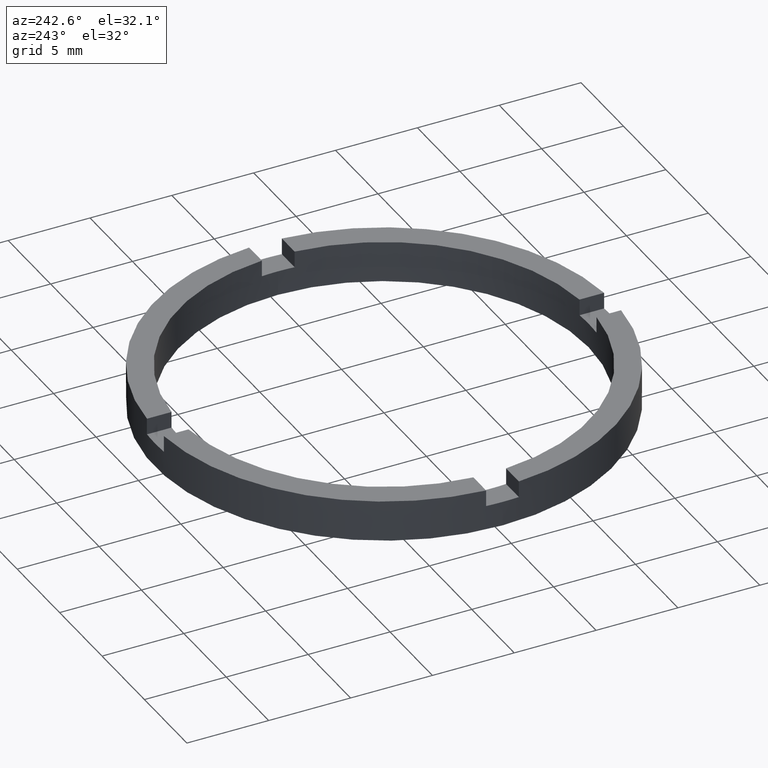
[diagram: clean part render]
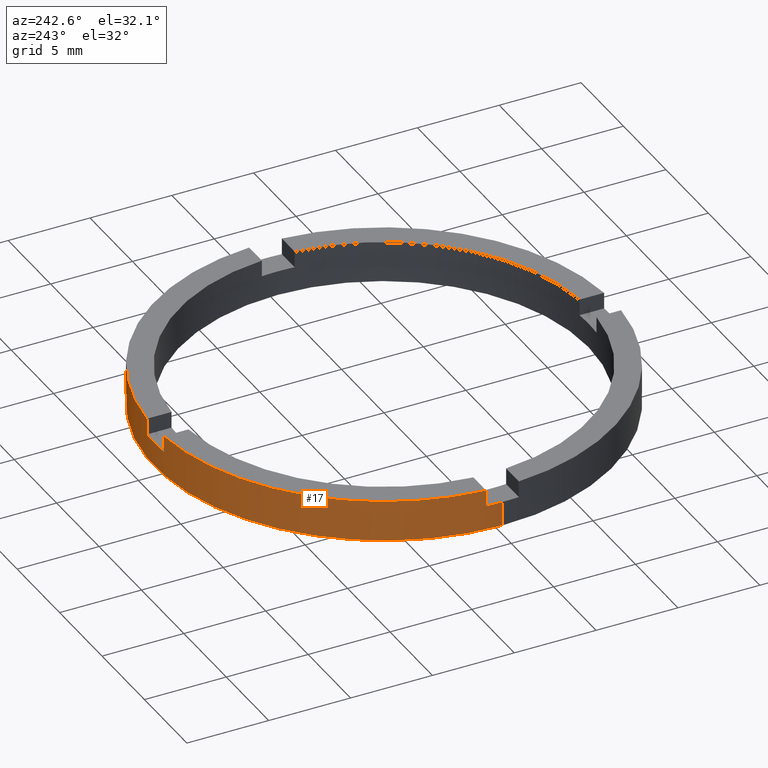
[diagram: same view with one face highlighted and labeled with its STEP entity id]
A machine part, auxiliary view. The second image highlights one B-rep face of the part: STEP entity #17.
In plain terms, the highlighted cylindrical surface (partial cylindrical patch) has radius 14 mm, axis along (-0, -0, -1).
Its self-contained STEP definition (entity closure, byte-faithful):
#4 = CIRCLE ( 'NONE', #313, 14.00000000000000000 ) ;
#8 = CYLINDRICAL_SURFACE ( 'NONE', #193, 14.00000000000000000 ) ;
#9 = CARTESIAN_POINT ( 'NONE',  ( 0.000000000000000000, 0.000000000000000000, 1.500000000000000000 ) ) ;
#10 = VECTOR ( 'NONE', #627, 1000.000000000000000 ) ;
#14 = CARTESIAN_POINT ( 'NONE',  ( 0.000000000000000000, 0.000000000000000000, 2.500000000000000000 ) ) ;
#17 = ADVANCED_FACE ( 'NONE', ( #260 ), #8, .T. ) ;
#18 = DIRECTION ( 'NONE',  ( 1.000000000000000000, 0.000000000000000000, 0.000000000000000000 ) ) ;
#29 = DIRECTION ( 'NONE',  ( -0.000000000000000000, -0.000000000000000000, -1.000000000000000000 ) ) ;
#35 = DIRECTION ( 'NONE',  ( 1.000000000000000000, 0.000000000000000000, 0.000000000000000000 ) ) ;
#46 = DIRECTION ( 'NONE',  ( 0.000000000000000000, 0.000000000000000000, 1.000000000000000000 ) ) ;
#48 = DIRECTION ( 'NONE',  ( 0.000000000000000000, 0.000000000000000000, 1.000000000000000000 ) ) ;
#57 = CARTESIAN_POINT ( 'NONE',  ( 0.000000000000000000, 0.000000000000000000, 0.000000000000000000 ) ) ;
#61 = EDGE_CURVE ( 'NONE', #711, #420, #519, .T. ) ;
#69 = CARTESIAN_POINT ( 'NONE',  ( 13.96424004376895311, 0.9999999999998404610, 2.500000000000000000 ) ) ;
#75 = DIRECTION ( 'NONE',  ( 0.000000000000000000, 0.000000000000000000, 1.000000000000000000 ) ) ;
#79 = EDGE_CURVE ( 'NONE', #131, #448, #4, .T. ) ;
#81 = DIRECTION ( 'NONE',  ( 1.000000000000000000, 0.000000000000000000, 0.000000000000000000 ) ) ;
#86 = VECTOR ( 'NONE', #29, 1000.000000000000000 ) ;
#91 = EDGE_CURVE ( 'NONE', #648, #448, #528, .T. ) ;
#110 = DIRECTION ( 'NONE',  ( 0.000000000000000000, 0.000000000000000000, 1.000000000000000000 ) ) ;
#120 = CARTESIAN_POINT ( 'NONE',  ( -1.000000000000024647, 13.96424004376894068, 1.500000000000000000 ) ) ;
#122 = ORIENTED_EDGE ( 'NONE', *, *, #321, .T. ) ;
#125 = ORIENTED_EDGE ( 'NONE', *, *, #79, .T. ) ;
#131 = VERTEX_POINT ( 'NONE', #579 ) ;
#133 = DIRECTION ( 'NONE',  ( 1.000000000000000000, 0.000000000000000000, 0.000000000000000000 ) ) ;
#151 = EDGE_CURVE ( 'NONE', #364, #429, #477, .T. ) ;
#166 = DIRECTION ( 'NONE',  ( 0.000000000000000000, 0.000000000000000000, 1.000000000000000000 ) ) ;
#172 = CARTESIAN_POINT ( 'NONE',  ( 0.000000000000000000, 0.000000000000000000, 2.500000000000000000 ) ) ;
#173 = VERTEX_POINT ( 'NONE', #69 ) ;
#176 = DIRECTION ( 'NONE',  ( 0.000000000000000000, -0.000000000000000000, 1.000000000000000000 ) ) ;
#180 = VERTEX_POINT ( 'NONE', #581 ) ;
#189 = ORIENTED_EDGE ( 'NONE', *, *, #548, .F. ) ;
#193 = AXIS2_PLACEMENT_3D ( 'NONE', #172, #243, #303 ) ;
#196 = ORIENTED_EDGE ( 'NONE', *, *, #236, .F. ) ;
#198 = ORIENTED_EDGE ( 'NONE', *, *, #151, .F. ) ;
#205 = EDGE_LOOP ( 'NONE', ( #700, #376, #125, #715, #437, #372, #189, #709, #198, #624, #196, #122 ) ) ;
#236 = EDGE_CURVE ( 'NONE', #173, #180, #506, .T. ) ;
#237 = CIRCLE ( 'NONE', #281, 14.00000000000000000 ) ;
#240 = CARTESIAN_POINT ( 'NONE',  ( -13.96424004376894246, 0.9999999999999772404, 2.500000000000000000 ) ) ;
#243 = DIRECTION ( 'NONE',  ( -0.000000000000000000, -0.000000000000000000, -1.000000000000000000 ) ) ;
#248 = LINE ( 'NONE', #284, #493 ) ;
#260 = FACE_OUTER_BOUND ( 'NONE', #205, .T. ) ;
#271 = CARTESIAN_POINT ( 'NONE',  ( -1.000000000000024647, 13.96424004376894068, 2.500000000000000000 ) ) ;
#274 = VECTOR ( 'NONE', #46, 1000.000000000000000 ) ;
#281 = AXIS2_PLACEMENT_3D ( 'NONE', #707, #166, #535 ) ;
#284 = CARTESIAN_POINT ( 'NONE',  ( 0.9999999999999753530, 13.96424004376894423, 2.500000000000000000 ) ) ;
#303 = DIRECTION ( 'NONE',  ( -1.000000000000000000, 0.000000000000000000, 0.000000000000000000 ) ) ;
#313 = AXIS2_PLACEMENT_3D ( 'NONE', #57, #110, #481 ) ;
#321 = EDGE_CURVE ( 'NONE', #173, #468, #777, .T. ) ;
#329 = CIRCLE ( 'NONE', #782, 14.00000000000000000 ) ;
#339 = EDGE_CURVE ( 'NONE', #413, #131, #507, .T. ) ;
#340 = LINE ( 'NONE', #271, #86 ) ;
#346 = EDGE_CURVE ( 'NONE', #711, #648, #489, .T. ) ;
#364 = VERTEX_POINT ( 'NONE', #630 ) ;
#372 = ORIENTED_EDGE ( 'NONE', *, *, #61, .T. ) ;
#376 = ORIENTED_EDGE ( 'NONE', *, *, #339, .T. ) ;
#398 = EDGE_CURVE ( 'NONE', #364, #180, #248, .T. ) ;
#399 = DIRECTION ( 'NONE',  ( -0.000000000000000000, -0.000000000000000000, -1.000000000000000000 ) ) ;
#408 = EDGE_CURVE ( 'NONE', #413, #468, #237, .T. ) ;
#413 = VERTEX_POINT ( 'NONE', #577 ) ;
#415 = VERTEX_POINT ( 'NONE', #644 ) ;
#420 = VERTEX_POINT ( 'NONE', #722 ) ;
#429 = VERTEX_POINT ( 'NONE', #120 ) ;
#437 = ORIENTED_EDGE ( 'NONE', *, *, #346, .F. ) ;
#448 = VERTEX_POINT ( 'NONE', #580 ) ;
#462 = DIRECTION ( 'NONE',  ( 0.000000000000000000, 0.000000000000000000, 1.000000000000000000 ) ) ;
#468 = VERTEX_POINT ( 'NONE', #597 ) ;
#477 = CIRCLE ( 'NONE', #732, 14.00000000000000000 ) ;
#481 = DIRECTION ( 'NONE',  ( 1.000000000000000000, 0.000000000000000000, 0.000000000000000000 ) ) ;
#489 = CIRCLE ( 'NONE', #605, 14.00000000000000000 ) ;
#493 = VECTOR ( 'NONE', #462, 1000.000000000000000 ) ;
#506 = CIRCLE ( 'NONE', #619, 14.00000000000000000 ) ;
#507 = LINE ( 'NONE', #686, #775 ) ;
#517 = VECTOR ( 'NONE', #635, 1000.000000000000000 ) ;
#519 = LINE ( 'NONE', #240, #274 ) ;
#528 = LINE ( 'NONE', #574, #10 ) ;
#535 = DIRECTION ( 'NONE',  ( 1.000000000000000000, 0.000000000000000000, 0.000000000000000000 ) ) ;
#548 = EDGE_CURVE ( 'NONE', #415, #420, #329, .T. ) ;
#552 = CARTESIAN_POINT ( 'NONE',  ( -13.96424004376894246, 0.9999999999999772404, 1.500000000000000000 ) ) ;
#574 = CARTESIAN_POINT ( 'NONE',  ( -14.00000000000000000, 0.000000000000000000, 2.500000000000000000 ) ) ;
#577 = CARTESIAN_POINT ( 'NONE',  ( 14.00000000000000000, 1.714505518806294638E-15, 1.500000000000000000 ) ) ;
#579 = CARTESIAN_POINT ( 'NONE',  ( 14.00000000000000000, 1.714505518806294638E-15, 0.000000000000000000 ) ) ;
#580 = CARTESIAN_POINT ( 'NONE',  ( -14.00000000000000000, 0.000000000000000000, 0.000000000000000000 ) ) ;
#581 = CARTESIAN_POINT ( 'NONE',  ( 0.9999999999999753530, 13.96424004376894423, 2.500000000000000000 ) ) ;
#597 = CARTESIAN_POINT ( 'NONE',  ( 13.96424004376895311, 0.9999999999998404610, 1.500000000000000000 ) ) ;
#605 = AXIS2_PLACEMENT_3D ( 'NONE', #760, #48, #35 ) ;
#608 = CARTESIAN_POINT ( 'NONE',  ( 13.96424004376895311, 0.9999999999998404610, 2.500000000000000000 ) ) ;
#609 = CARTESIAN_POINT ( 'NONE',  ( 0.000000000000000000, 0.000000000000000000, 2.500000000000000000 ) ) ;
#615 = DIRECTION ( 'NONE',  ( 0.000000000000000000, 0.000000000000000000, 1.000000000000000000 ) ) ;
#619 = AXIS2_PLACEMENT_3D ( 'NONE', #609, #615, #81 ) ;
#624 = ORIENTED_EDGE ( 'NONE', *, *, #398, .T. ) ;
#627 = DIRECTION ( 'NONE',  ( -0.000000000000000000, -0.000000000000000000, -1.000000000000000000 ) ) ;
#630 = CARTESIAN_POINT ( 'NONE',  ( 0.9999999999999753530, 13.96424004376894423, 1.500000000000000000 ) ) ;
#635 = DIRECTION ( 'NONE',  ( -0.000000000000000000, -0.000000000000000000, -1.000000000000000000 ) ) ;
#644 = CARTESIAN_POINT ( 'NONE',  ( -1.000000000000024647, 13.96424004376894068, 2.500000000000000000 ) ) ;
#648 = VERTEX_POINT ( 'NONE', #657 ) ;
#657 = CARTESIAN_POINT ( 'NONE',  ( -14.00000000000000000, 0.000000000000000000, 1.500000000000000000 ) ) ;
#686 = CARTESIAN_POINT ( 'NONE',  ( 14.00000000000000000, 1.714505518806294638E-15, 2.500000000000000000 ) ) ;
#700 = ORIENTED_EDGE ( 'NONE', *, *, #408, .F. ) ;
#707 = CARTESIAN_POINT ( 'NONE',  ( 0.000000000000000000, 0.000000000000000000, 1.500000000000000000 ) ) ;
#709 = ORIENTED_EDGE ( 'NONE', *, *, #767, .T. ) ;
#711 = VERTEX_POINT ( 'NONE', #552 ) ;
#715 = ORIENTED_EDGE ( 'NONE', *, *, #91, .F. ) ;
#722 = CARTESIAN_POINT ( 'NONE',  ( -13.96424004376894246, 0.9999999999999772404, 2.500000000000000000 ) ) ;
#732 = AXIS2_PLACEMENT_3D ( 'NONE', #9, #176, #133 ) ;
#760 = CARTESIAN_POINT ( 'NONE',  ( 0.000000000000000000, 0.000000000000000000, 1.500000000000000000 ) ) ;
#767 = EDGE_CURVE ( 'NONE', #415, #429, #340, .T. ) ;
#775 = VECTOR ( 'NONE', #399, 1000.000000000000000 ) ;
#777 = LINE ( 'NONE', #608, #517 ) ;
#782 = AXIS2_PLACEMENT_3D ( 'NONE', #14, #75, #18 ) ;